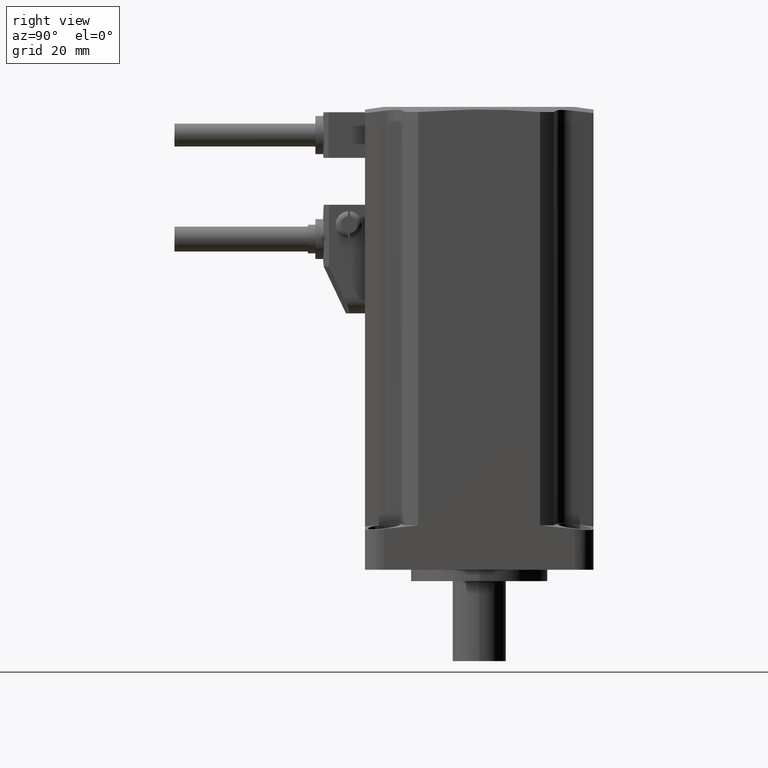
[diagram: clean part render]
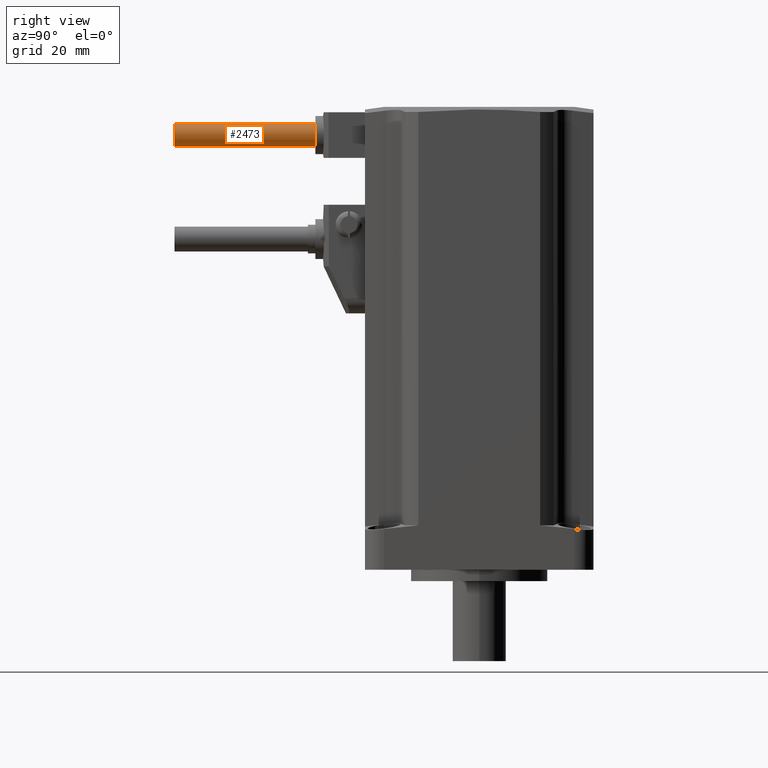
[diagram: same view with one face highlighted and labeled with its STEP entity id]
A machine part, right view. The second image highlights one B-rep face of the part: STEP entity #2473.
In plain terms, the highlighted cylindrical surface (edge-blend (fillet) strip) has radius 3 mm, axis along (0, 1, 0).
Its self-contained STEP definition (entity closure, byte-faithful):
#303 = VECTOR ( 'NONE', #4209, 1000.000000000000000 ) ;
#332 = DIRECTION ( 'NONE',  ( 0.0000000000000000000, 1.000000000000000000, 0.0000000000000000000 ) ) ;
#390 = CARTESIAN_POINT ( 'NONE',  ( 0.0000000000000000000, -43.00000000000003553, 117.0999999999999801 ) ) ;
#439 = CIRCLE ( 'NONE', #2777, 3.000000000000002665 ) ;
#445 = AXIS2_PLACEMENT_3D ( 'NONE', #2309, #332, #3851 ) ;
#522 = ORIENTED_EDGE ( 'NONE', *, *, #767, .T. ) ;
#538 = DIRECTION ( 'NONE',  ( -0.0000000000000000000, -1.000000000000000000, -0.0000000000000000000 ) ) ;
#637 = EDGE_CURVE ( 'NONE', #2450, #3116, #439, .T. ) ;
#759 = VERTEX_POINT ( 'NONE', #4254 ) ;
#767 = EDGE_CURVE ( 'NONE', #2730, #2450, #806, .T. ) ;
#769 = CYLINDRICAL_SURFACE ( 'NONE', #445, 3.000000000000002665 ) ;
#806 = LINE ( 'NONE', #2956, #1332 ) ;
#1092 = ORIENTED_EDGE ( 'NONE', *, *, #637, .T. ) ;
#1227 = CARTESIAN_POINT ( 'NONE',  ( 3.673940397442062826E-16, -43.00000000000003553, 111.0999999999999801 ) ) ;
#1332 = VECTOR ( 'NONE', #3153, 1000.000000000000000 ) ;
#1676 = AXIS2_PLACEMENT_3D ( 'NONE', #2550, #4096, #4883 ) ;
#1889 = LINE ( 'NONE', #4594, #303 ) ;
#2309 = CARTESIAN_POINT ( 'NONE',  ( 0.0000000000000000000, -386.4999999999999432, 114.0999999999999801 ) ) ;
#2450 = VERTEX_POINT ( 'NONE', #1227 ) ;
#2473 = ADVANCED_FACE ( 'NONE', ( #3139 ), #769, .T. ) ;
#2522 = ORIENTED_EDGE ( 'NONE', *, *, #4179, .T. ) ;
#2550 = CARTESIAN_POINT ( 'NONE',  ( 0.0000000000000000000, -80.00000000000001421, 114.0999999999999801 ) ) ;
#2730 = VERTEX_POINT ( 'NONE', #3084 ) ;
#2777 = AXIS2_PLACEMENT_3D ( 'NONE', #2831, #538, #4404 ) ;
#2831 = CARTESIAN_POINT ( 'NONE',  ( 0.0000000000000000000, -43.00000000000003553, 114.0999999999999801 ) ) ;
#2956 = CARTESIAN_POINT ( 'NONE',  ( 3.673940397442062826E-16, -386.4999999999999432, 111.0999999999999801 ) ) ;
#3084 = CARTESIAN_POINT ( 'NONE',  ( 3.673940397442062826E-16, -80.00000000000001421, 111.0999999999999801 ) ) ;
#3116 = VERTEX_POINT ( 'NONE', #390 ) ;
#3139 = FACE_OUTER_BOUND ( 'NONE', #4439, .T. ) ;
#3153 = DIRECTION ( 'NONE',  ( 0.0000000000000000000, 1.000000000000000000, 0.0000000000000000000 ) ) ;
#3551 = ORIENTED_EDGE ( 'NONE', *, *, #4339, .F. ) ;
#3851 = DIRECTION ( 'NONE',  ( 0.0000000000000000000, 0.0000000000000000000, 1.000000000000000000 ) ) ;
#4096 = DIRECTION ( 'NONE',  ( 0.0000000000000000000, 1.000000000000000000, 0.0000000000000000000 ) ) ;
#4179 = EDGE_CURVE ( 'NONE', #759, #2730, #4670, .T. ) ;
#4209 = DIRECTION ( 'NONE',  ( 0.0000000000000000000, 1.000000000000000000, 0.0000000000000000000 ) ) ;
#4254 = CARTESIAN_POINT ( 'NONE',  ( 0.0000000000000000000, -80.00000000000001421, 117.0999999999999801 ) ) ;
#4339 = EDGE_CURVE ( 'NONE', #759, #3116, #1889, .T. ) ;
#4404 = DIRECTION ( 'NONE',  ( 0.0000000000000000000, 0.0000000000000000000, 1.000000000000000000 ) ) ;
#4439 = EDGE_LOOP ( 'NONE', ( #2522, #522, #1092, #3551 ) ) ;
#4594 = CARTESIAN_POINT ( 'NONE',  ( 0.0000000000000000000, -386.4999999999999432, 117.0999999999999801 ) ) ;
#4670 = CIRCLE ( 'NONE', #1676, 3.000000000000002665 ) ;
#4883 = DIRECTION ( 'NONE',  ( 0.0000000000000000000, 0.0000000000000000000, 1.000000000000000000 ) ) ;